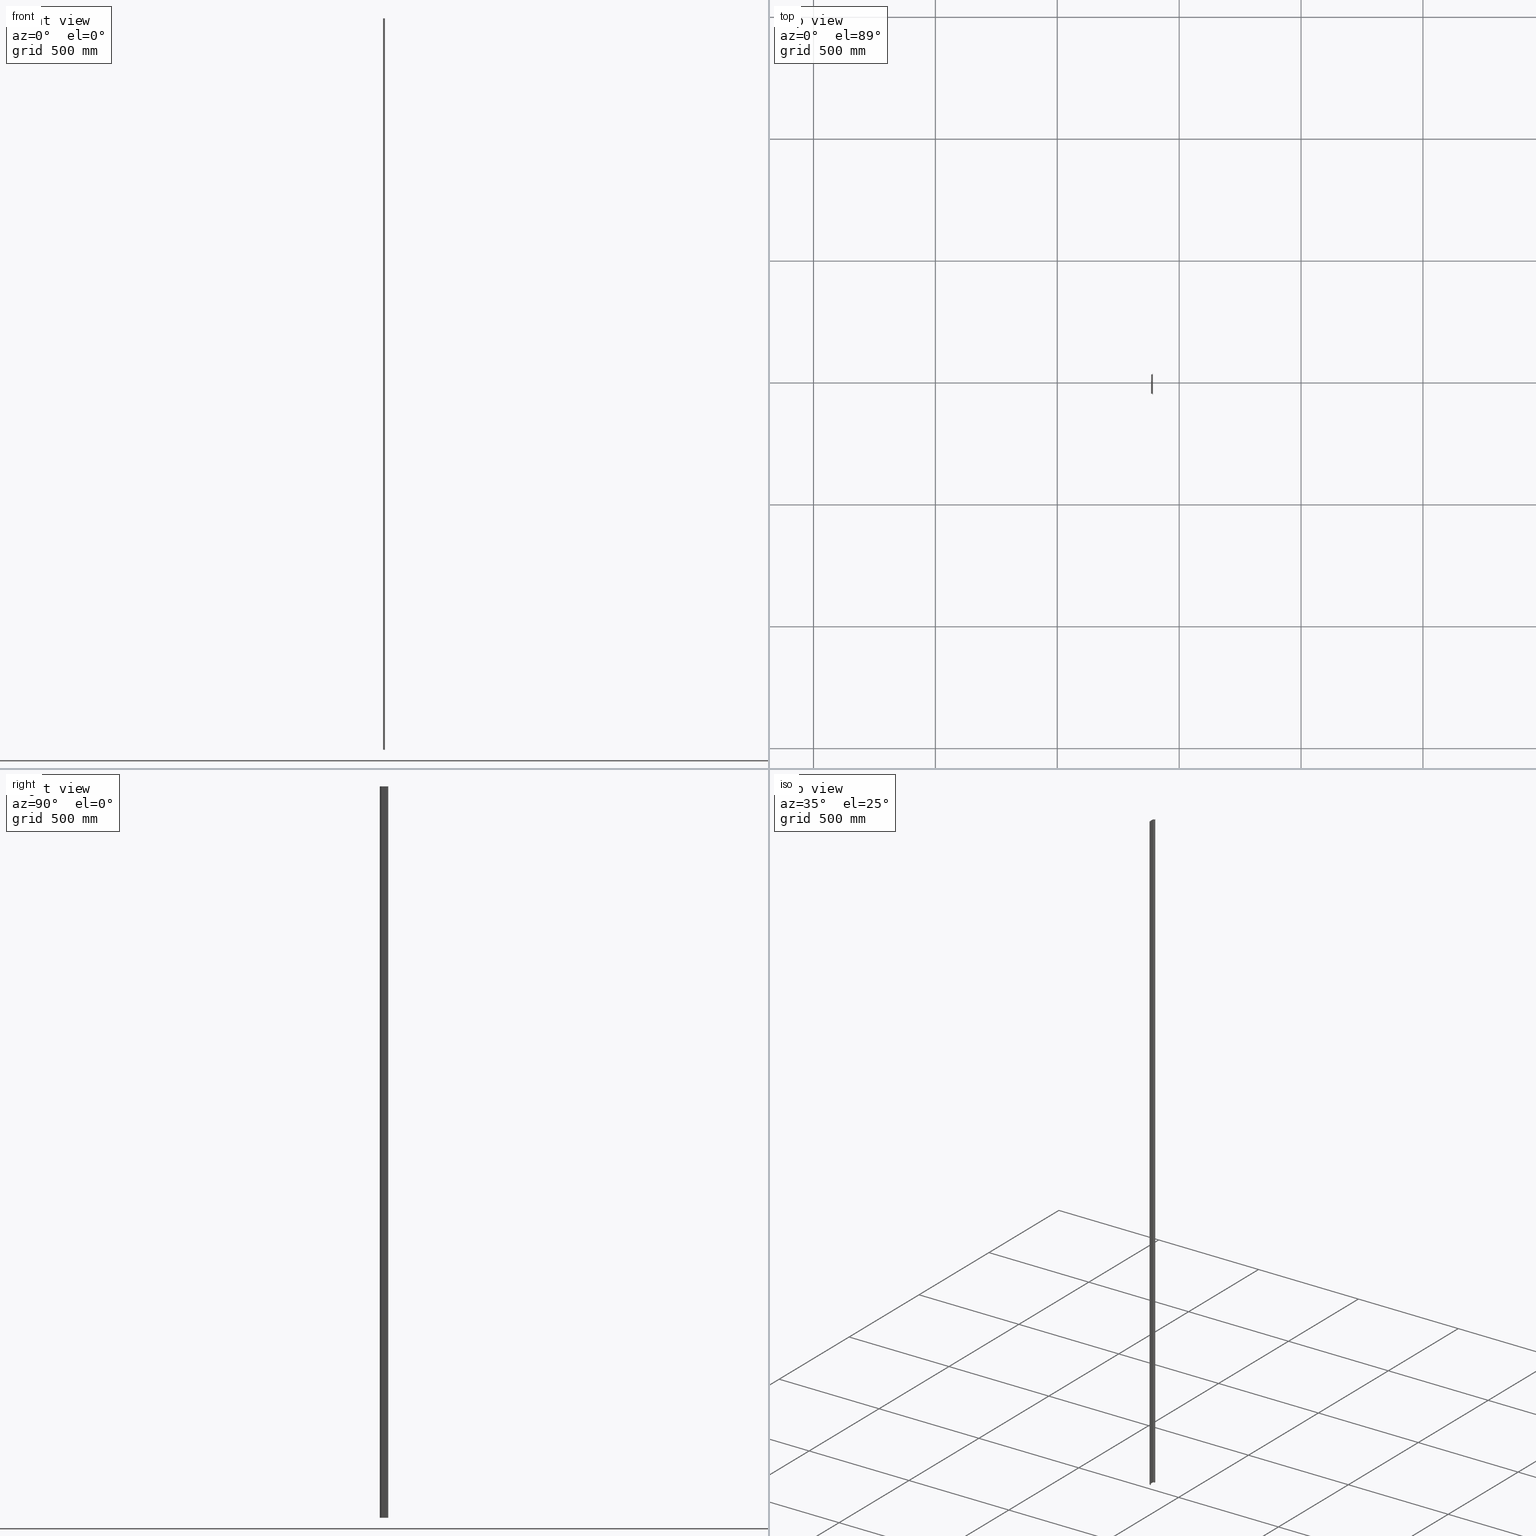
[diagram: canonical four-view strip — front | top / right | iso, engineering-drawing reading convention]
A machine part, canonical four-view strip (front | top / right | iso — engineering-drawing reading convention). The complete STEP part file that produces these views, byte-faithful:
ISO-10303-21;
HEADER;
FILE_DESCRIPTION (( 'STEP AP203' ),
    '1' );
FILE_NAME ('35x7,5 Galvaniz Kapl� D�z Montaj Raylar� - 3 m.STEP',
    '2019-01-04T05:48:22',
    ( '' ),
    ( '' ),
    'SwSTEP 2.0',
    'SolidWorks 2011',
    '' );
FILE_SCHEMA (( 'CONFIG_CONTROL_DESIGN' ));
ENDSEC;

DATA;
#1 = CARTESIAN_POINT ( 'NONE',  ( 1388.575919215658400, 455.5188036583252800, 3000.000000000000000 ) ) ;
#2 = DIRECTION ( 'NONE',  ( -1.000000000000000000, 2.467162276944699000E-014, 0.0000000000000000000 ) ) ;
#3 = LINE ( 'NONE', #4, #258 ) ;
#4 = CARTESIAN_POINT ( 'NONE',  ( 1392.325919215657900, 483.5188036583252800, 3000.000000000000000 ) ) ;
#5 = DIRECTION ( 'NONE',  ( 0.0000000000000000000, 0.0000000000000000000, -1.000000000000000000 ) ) ;
#6 = DIRECTION ( 'NONE',  ( -1.000000000000000000, 0.0000000000000000000, 0.0000000000000000000 ) ) ;
#7 = DIRECTION ( 'NONE',  ( 1.000000000000000000, 0.0000000000000000000, 0.0000000000000000000 ) ) ;
#8 = CARTESIAN_POINT ( 'NONE',  ( 1388.575919215657900, 451.6188036583252500, 0.0000000000000000000 ) ) ;
#9 = LINE ( 'NONE', #16, #270 ) ;
#10 = FACE_OUTER_BOUND ( 'NONE', #557, .T. ) ;
#11 = LINE ( 'NONE', #12, #261 ) ;
#12 = CARTESIAN_POINT ( 'NONE',  ( 1388.575919215657900, 486.6188036583252500, 0.0000000000000000000 ) ) ;
#13 = CARTESIAN_POINT ( 'NONE',  ( 1386.625919215657900, 457.3188036583253500, 0.0000000000000000000 ) ) ;
#14 = DIRECTION ( 'NONE',  ( -0.0000000000000000000, 0.0000000000000000000, 1.000000000000000000 ) ) ;
#15 = CARTESIAN_POINT ( 'NONE',  ( 1384.825919215657900, 441.1357542965276400, 0.0000000000000000000 ) ) ;
#16 = CARTESIAN_POINT ( 'NONE',  ( 1386.625919215657900, 456.5188036583253400, 3000.000000000000000 ) ) ;
#17 = DIRECTION ( 'NONE',  ( 0.0000000000000000000, 0.0000000000000000000, 1.000000000000000000 ) ) ;
#18 = DIRECTION ( 'NONE',  ( 1.000000000000000000, 0.0000000000000000000, 0.0000000000000000000 ) ) ;
#19 = DIRECTION ( 'NONE',  ( 1.000000000000000000, 0.0000000000000000000, 0.0000000000000000000 ) ) ;
#20 = DIRECTION ( 'NONE',  ( -1.000000000000000000, 0.0000000000000000000, 0.0000000000000000000 ) ) ;
#21 = DIRECTION ( 'NONE',  ( 0.0000000000000000000, -0.0000000000000000000, -1.000000000000000000 ) ) ;
#22 = DIRECTION ( 'NONE',  ( -0.0000000000000000000, -0.0000000000000000000, -1.000000000000000000 ) ) ;
#23 = DIRECTION ( 'NONE',  ( 0.0000000000000000000, -1.000000000000000000, 0.0000000000000000000 ) ) ;
#24 = LINE ( 'NONE', #38, #242 ) ;
#25 = DIRECTION ( 'NONE',  ( 0.0000000000000000000, -0.0000000000000000000, -1.000000000000000000 ) ) ;
#26 = DIRECTION ( 'NONE',  ( -0.0000000000000000000, -0.0000000000000000000, -1.000000000000000000 ) ) ;
#27 = LINE ( 'NONE', #45, #275 ) ;
#28 = LINE ( 'NONE', #15, #260 ) ;
#29 = LINE ( 'NONE', #39, #226 ) ;
#30 = LINE ( 'NONE', #48, #251 ) ;
#31 = CARTESIAN_POINT ( 'NONE',  ( 1392.325919215657900, 441.1357542965276400, 0.0000000000000000000 ) ) ;
#32 = DIRECTION ( 'NONE',  ( 0.0000000000000000000, -1.000000000000000000, 0.0000000000000000000 ) ) ;
#33 = DIRECTION ( 'NONE',  ( 0.0000000000000000000, 0.0000000000000000000, 1.000000000000000000 ) ) ;
#34 = LINE ( 'NONE', #60, #239 ) ;
#35 = LINE ( 'NONE', #31, #252 ) ;
#36 = LINE ( 'NONE', #40, #227 ) ;
#37 = DIRECTION ( 'NONE',  ( 1.000000000000000000, 0.0000000000000000000, 0.0000000000000000000 ) ) ;
#38 = CARTESIAN_POINT ( 'NONE',  ( 1391.325919215657900, 483.5188036583252300, 3000.000000000000000 ) ) ;
#39 = CARTESIAN_POINT ( 'NONE',  ( 1391.325919215657900, 441.1357542965276400, 0.0000000000000000000 ) ) ;
#40 = CARTESIAN_POINT ( 'NONE',  ( 1384.825919215657900, 441.1357542965276400, 3000.000000000000000 ) ) ;
#41 = CARTESIAN_POINT ( 'NONE',  ( 1390.525919215658000, 454.7188036583252100, 0.0000000000000000000 ) ) ;
#42 = DIRECTION ( 'NONE',  ( -0.0000000000000000000, 0.0000000000000000000, 1.000000000000000000 ) ) ;
#43 = DIRECTION ( 'NONE',  ( 0.0000000000000000000, -1.000000000000000000, 0.0000000000000000000 ) ) ;
#44 = CARTESIAN_POINT ( 'NONE',  ( 1386.625919215658100, 480.9188036583253200, 0.0000000000000000000 ) ) ;
#45 = CARTESIAN_POINT ( 'NONE',  ( 1391.325919215657900, 454.7188036583252100, 3000.000000000000000 ) ) ;
#46 = DIRECTION ( 'NONE',  ( 0.0000000000000000000, -1.000000000000000000, 0.0000000000000000000 ) ) ;
#47 = LINE ( 'NONE', #49, #235 ) ;
#48 = CARTESIAN_POINT ( 'NONE',  ( 1386.625919215657900, 481.7188036583252700, 0.0000000000000000000 ) ) ;
#49 = CARTESIAN_POINT ( 'NONE',  ( 1391.325919215657900, 441.1357542965276400, 0.0000000000000000000 ) ) ;
#50 = DIRECTION ( 'NONE',  ( 0.0000000000000000000, -1.000000000000000000, 0.0000000000000000000 ) ) ;
#51 = CARTESIAN_POINT ( 'NONE',  ( 1390.525919215657700, 483.5188036583252800, 0.0000000000000000000 ) ) ;
#52 = LINE ( 'NONE', #53, #255 ) ;
#53 = CARTESIAN_POINT ( 'NONE',  ( 1386.625919215658100, 482.7188036583253300, 3000.000000000000000 ) ) ;
#54 = DIRECTION ( 'NONE',  ( 1.000000000000000000, 0.0000000000000000000, 0.0000000000000000000 ) ) ;
#55 = CARTESIAN_POINT ( 'NONE',  ( 1390.525919215658000, 454.7188036583252100, 3000.000000000000000 ) ) ;
#56 = DIRECTION ( 'NONE',  ( 1.000000000000000000, 0.0000000000000000000, 0.0000000000000000000 ) ) ;
#57 = LINE ( 'NONE', #69, #253 ) ;
#58 = DIRECTION ( 'NONE',  ( 0.0000000000000000000, -0.0000000000000000000, -1.000000000000000000 ) ) ;
#59 = DIRECTION ( 'NONE',  ( -0.0000000000000000000, -0.0000000000000000000, -1.000000000000000000 ) ) ;
#60 = CARTESIAN_POINT ( 'NONE',  ( 1385.825919215657900, 457.3188036583253500, 3000.000000000000000 ) ) ;
#61 = DIRECTION ( 'NONE',  ( 0.0000000000000000000, -0.0000000000000000000, -1.000000000000000000 ) ) ;
#62 = LINE ( 'NONE', #66, #249 ) ;
#63 = DIRECTION ( 'NONE',  ( -0.0000000000000000000, 0.0000000000000000000, 1.000000000000000000 ) ) ;
#64 = DIRECTION ( 'NONE',  ( 1.000000000000000000, 0.0000000000000000000, 0.0000000000000000000 ) ) ;
#65 = CARTESIAN_POINT ( 'NONE',  ( 1386.625919215658100, 457.3188036583254100, 3000.000000000000000 ) ) ;
#66 = CARTESIAN_POINT ( 'NONE',  ( 1391.325919215657900, 451.6188036583252500, 3000.000000000000000 ) ) ;
#67 = CARTESIAN_POINT ( 'NONE',  ( 1386.625919215658100, 457.3188036583254100, 0.0000000000000000000 ) ) ;
#68 = LINE ( 'NONE', #71, #230 ) ;
#69 = CARTESIAN_POINT ( 'NONE',  ( 1384.825919215657900, 480.9188036583253200, 3000.000000000000000 ) ) ;
#70 = DIRECTION ( 'NONE',  ( -0.0000000000000000000, -0.0000000000000000000, -1.000000000000000000 ) ) ;
#71 = CARTESIAN_POINT ( 'NONE',  ( 1391.325919215657900, 486.6188036583252500, 3000.000000000000000 ) ) ;
#72 = DIRECTION ( 'NONE',  ( -0.0000000000000000000, -0.0000000000000000000, 1.000000000000000000 ) ) ;
#73 = DIRECTION ( 'NONE',  ( 0.0000000000000000000, 0.0000000000000000000, -1.000000000000000000 ) ) ;
#74 = LINE ( 'NONE', #75, #234 ) ;
#75 = CARTESIAN_POINT ( 'NONE',  ( 1388.575919215657900, 481.7188036583252700, 3000.000000000000000 ) ) ;
#76 = LINE ( 'NONE', #77, #245 ) ;
#77 = CARTESIAN_POINT ( 'NONE',  ( 1385.825919215657900, 441.1357542965276400, 3000.000000000000000 ) ) ;
#78 = CARTESIAN_POINT ( 'NONE',  ( 1390.525919215658000, 482.7188036583252100, 3000.000000000000000 ) ) ;
#79 = CARTESIAN_POINT ( 'NONE',  ( 1386.625919215658100, 480.9188036583253200, 3000.000000000000000 ) ) ;
#80 = LINE ( 'NONE', #114, #265 ) ;
#81 = CARTESIAN_POINT ( 'NONE',  ( 1386.625919215658100, 455.5188036583253400, 3000.000000000000000 ) ) ;
#82 = CARTESIAN_POINT ( 'NONE',  ( 1390.525919215658000, 483.5188036583252300, 3000.000000000000000 ) ) ;
#83 = DIRECTION ( 'NONE',  ( 0.0000000000000000000, -1.000000000000000000, 0.0000000000000000000 ) ) ;
#84 = DIRECTION ( 'NONE',  ( 0.0000000000000000000, -0.0000000000000000000, -1.000000000000000000 ) ) ;
#85 = DIRECTION ( 'NONE',  ( 0.0000000000000000000, -1.000000000000000000, 0.0000000000000000000 ) ) ;
#86 = CARTESIAN_POINT ( 'NONE',  ( 1386.625919215657900, 457.3188036583253500, 3000.000000000000000 ) ) ;
#87 = DIRECTION ( 'NONE',  ( 0.0000000000000000000, -0.0000000000000000000, -1.000000000000000000 ) ) ;
#88 = DIRECTION ( 'NONE',  ( 1.000000000000000000, 0.0000000000000000000, 0.0000000000000000000 ) ) ;
#89 = DIRECTION ( 'NONE',  ( -1.000000000000000000, 2.467162276944699000E-014, 0.0000000000000000000 ) ) ;
#90 = LINE ( 'NONE', #107, #540 ) ;
#91 = CARTESIAN_POINT ( 'NONE',  ( 1385.825919215657900, 441.1357542965276400, 0.0000000000000000000 ) ) ;
#92 = DIRECTION ( 'NONE',  ( 0.0000000000000000000, -1.000000000000000000, 0.0000000000000000000 ) ) ;
#93 = DIRECTION ( 'NONE',  ( 1.000000000000000000, 0.0000000000000000000, 0.0000000000000000000 ) ) ;
#94 = DIRECTION ( 'NONE',  ( -0.0000000000000000000, 0.0000000000000000000, 1.000000000000000000 ) ) ;
#95 = DIRECTION ( 'NONE',  ( 1.000000000000000000, 0.0000000000000000000, 0.0000000000000000000 ) ) ;
#96 = CARTESIAN_POINT ( 'NONE',  ( 1388.575919215658400, 455.5188036583252800, 0.0000000000000000000 ) ) ;
#97 = DIRECTION ( 'NONE',  ( 1.000000000000000000, 0.0000000000000000000, 0.0000000000000000000 ) ) ;
#98 = CARTESIAN_POINT ( 'NONE',  ( 1390.525919215657700, 454.7188036583252700, 0.0000000000000000000 ) ) ;
#99 = LINE ( 'NONE', #102, #554 ) ;
#100 = DIRECTION ( 'NONE',  ( 1.000000000000000000, 0.0000000000000000000, 0.0000000000000000000 ) ) ;
#101 = LINE ( 'NONE', #91, #274 ) ;
#102 = CARTESIAN_POINT ( 'NONE',  ( 1392.325919215657900, 441.1357542965276400, 0.0000000000000000000 ) ) ;
#103 = DIRECTION ( 'NONE',  ( 0.0000000000000000000, -0.0000000000000000000, -1.000000000000000000 ) ) ;
#104 = DIRECTION ( 'NONE',  ( -1.000000000000000000, 0.0000000000000000000, 0.0000000000000000000 ) ) ;
#105 = DIRECTION ( 'NONE',  ( -0.0000000000000000000, -0.0000000000000000000, 1.000000000000000000 ) ) ;
#106 = DIRECTION ( 'NONE',  ( 0.0000000000000000000, -0.0000000000000000000, -1.000000000000000000 ) ) ;
#107 = CARTESIAN_POINT ( 'NONE',  ( 1388.575919215657900, 486.6188036583252500, 3000.000000000000000 ) ) ;
#108 = CARTESIAN_POINT ( 'NONE',  ( 1390.525919215657700, 456.5188036583253400, 0.0000000000000000000 ) ) ;
#109 = DIRECTION ( 'NONE',  ( -0.0000000000000000000, -0.0000000000000000000, -1.000000000000000000 ) ) ;
#110 = CARTESIAN_POINT ( 'NONE',  ( 1386.625919215657900, 480.9188036583252600, 3000.000000000000000 ) ) ;
#111 = DIRECTION ( 'NONE',  ( 0.0000000000000000000, 0.0000000000000000000, -1.000000000000000000 ) ) ;
#112 = LINE ( 'NONE', #108, #248 ) ;
#113 = LINE ( 'NONE', #96, #250 ) ;
#114 = CARTESIAN_POINT ( 'NONE',  ( 1390.525919215657700, 481.7188036583252700, 3000.000000000000000 ) ) ;
#115 = CARTESIAN_POINT ( 'NONE',  ( 1386.625919215657900, 480.9188036583252600, 3000.000000000000000 ) ) ;
#116 = DIRECTION ( 'NONE',  ( 0.0000000000000000000, 0.0000000000000000000, -1.000000000000000000 ) ) ;
#117 = CARTESIAN_POINT ( 'NONE',  ( 1386.625919215658100, 482.7188036583253300, 0.0000000000000000000 ) ) ;
#118 = CARTESIAN_POINT ( 'NONE',  ( 1391.325919215657900, 483.5188036583252300, 3000.000000000000000 ) ) ;
#119 = CARTESIAN_POINT ( 'NONE',  ( 1386.625919215658100, 455.5188036583253400, 0.0000000000000000000 ) ) ;
#120 = CARTESIAN_POINT ( 'NONE',  ( 1384.825919215657900, 480.9188036583253200, 3000.000000000000000 ) ) ;
#121 = DIRECTION ( 'NONE',  ( -1.000000000000000000, 0.0000000000000000000, 0.0000000000000000000 ) ) ;
#122 = CARTESIAN_POINT ( 'NONE',  ( 1392.325919215657900, 486.6188036583252500, 3000.000000000000000 ) ) ;
#123 = LINE ( 'NONE', #133, #543 ) ;
#124 = CARTESIAN_POINT ( 'NONE',  ( 1385.825919215657900, 480.9188036583252600, 0.0000000000000000000 ) ) ;
#125 = CARTESIAN_POINT ( 'NONE',  ( 1386.625919215658100, 482.7188036583253300, 3000.000000000000000 ) ) ;
#126 = CARTESIAN_POINT ( 'NONE',  ( 1390.525919215657700, 481.7188036583252700, 0.0000000000000000000 ) ) ;
#127 = CARTESIAN_POINT ( 'NONE',  ( 1392.325919215657900, 454.7188036583252700, 3000.000000000000000 ) ) ;
#128 = CARTESIAN_POINT ( 'NONE',  ( 1384.825919215657900, 480.9188036583253200, 0.0000000000000000000 ) ) ;
#129 = CARTESIAN_POINT ( 'NONE',  ( 1391.325919215657900, 454.7188036583252100, 0.0000000000000000000 ) ) ;
#130 = CARTESIAN_POINT ( 'NONE',  ( 1392.325919215657900, 451.6188036583252500, 0.0000000000000000000 ) ) ;
#131 = CARTESIAN_POINT ( 'NONE',  ( 1392.325919215657900, 451.6188036583252500, 3000.000000000000000 ) ) ;
#132 = CARTESIAN_POINT ( 'NONE',  ( 1391.325919215657900, 486.6188036583252500, 3000.000000000000000 ) ) ;
#133 = CARTESIAN_POINT ( 'NONE',  ( 1392.325919215657900, 454.7188036583252700, 3000.000000000000000 ) ) ;
#134 = CARTESIAN_POINT ( 'NONE',  ( 1390.525919215658000, 455.5188036583252800, 0.0000000000000000000 ) ) ;
#135 = CARTESIAN_POINT ( 'NONE',  ( 1390.525919215657700, 456.5188036583253400, 3000.000000000000000 ) ) ;
#136 = CARTESIAN_POINT ( 'NONE',  ( 1392.325919215657900, 483.5188036583252800, 3000.000000000000000 ) ) ;
#137 = CARTESIAN_POINT ( 'NONE',  ( 1386.625919215657900, 456.5188036583253400, 0.0000000000000000000 ) ) ;
#138 = CARTESIAN_POINT ( 'NONE',  ( 1390.525919215657700, 481.7188036583252700, 3000.000000000000000 ) ) ;
#139 = CARTESIAN_POINT ( 'NONE',  ( 1384.825919215657900, 457.3188036583254100, 3000.000000000000000 ) ) ;
#140 = FACE_OUTER_BOUND ( 'NONE', #693, .T. ) ;
#141 = CYLINDRICAL_SURFACE ( 'NONE', #546, 0.7999999999999118900 ) ;
#142 = CARTESIAN_POINT ( 'NONE',  ( 1384.825919215657900, 457.3188036583254100, 0.0000000000000000000 ) ) ;
#143 = CARTESIAN_POINT ( 'NONE',  ( 1385.825919215657900, 480.9188036583252600, 3000.000000000000000 ) ) ;
#144 = DIRECTION ( 'NONE',  ( -0.0000000000000000000, -0.0000000000000000000, 1.000000000000000000 ) ) ;
#145 = CARTESIAN_POINT ( 'NONE',  ( 1392.325919215657900, 454.7188036583252700, 0.0000000000000000000 ) ) ;
#146 = CARTESIAN_POINT ( 'NONE',  ( 1391.325919215657900, 451.6188036583252500, 3000.000000000000000 ) ) ;
#147 = CARTESIAN_POINT ( 'NONE',  ( 1391.325919215657900, 454.7188036583252100, 3000.000000000000000 ) ) ;
#148 = CARTESIAN_POINT ( 'NONE',  ( 1392.325919215657900, 483.5188036583252800, 0.0000000000000000000 ) ) ;
#149 = CARTESIAN_POINT ( 'NONE',  ( 1390.525919215658000, 482.7188036583252100, 0.0000000000000000000 ) ) ;
#150 = CARTESIAN_POINT ( 'NONE',  ( 1388.575919215659000, 482.7188036583252700, 3000.000000000000000 ) ) ;
#151 = CARTESIAN_POINT ( 'NONE',  ( 1384.825919215657900, 441.1357542965276400, 3000.000000000000000 ) ) ;
#152 = DIRECTION ( 'NONE',  ( 1.000000000000000000, 0.0000000000000000000, -0.0000000000000000000 ) ) ;
#153 = CARTESIAN_POINT ( 'NONE',  ( 1391.325919215657900, 451.6188036583252500, 0.0000000000000000000 ) ) ;
#154 = CARTESIAN_POINT ( 'NONE',  ( 1386.625919215657900, 456.5188036583253400, 3000.000000000000000 ) ) ;
#155 = CARTESIAN_POINT ( 'NONE',  ( 1392.325919215657900, 486.6188036583252500, 0.0000000000000000000 ) ) ;
#156 = DIRECTION ( 'NONE',  ( -0.0000000000000000000, 0.0000000000000000000, -1.000000000000000000 ) ) ;
#157 = CARTESIAN_POINT ( 'NONE',  ( 1385.825919215657900, 457.3188036583253500, 3000.000000000000000 ) ) ;
#158 = CARTESIAN_POINT ( 'NONE',  ( 1391.325919215657900, 486.6188036583252500, 0.0000000000000000000 ) ) ;
#159 = CARTESIAN_POINT ( 'NONE',  ( 1386.625919215657900, 481.7188036583252700, 0.0000000000000000000 ) ) ;
#160 = DIRECTION ( 'NONE',  ( -1.000000000000000000, 0.0000000000000000000, 0.0000000000000000000 ) ) ;
#161 = CARTESIAN_POINT ( 'NONE',  ( 1385.825919215657900, 457.3188036583253500, 0.0000000000000000000 ) ) ;
#162 = CARTESIAN_POINT ( 'NONE',  ( 1390.525919215657700, 456.5188036583253400, 0.0000000000000000000 ) ) ;
#163 = CARTESIAN_POINT ( 'NONE',  ( 1390.525919215658000, 455.5188036583252800, 3000.000000000000000 ) ) ;
#164 = PLANE ( 'NONE',  #545 ) ;
#165 = CARTESIAN_POINT ( 'NONE',  ( 1386.625919215657900, 481.7188036583252700, 3000.000000000000000 ) ) ;
#166 = CARTESIAN_POINT ( 'NONE',  ( 1391.325919215657900, 483.5188036583252300, 0.0000000000000000000 ) ) ;
#167 = FACE_OUTER_BOUND ( 'NONE', #178, .T. ) ;
#168 = LINE ( 'NONE', #150, #547 ) ;
#169 = CARTESIAN_POINT ( 'NONE',  ( 1388.575919215657900, 451.6188036583252500, 3000.000000000000000 ) ) ;
#170 = CARTESIAN_POINT ( 'NONE',  ( 1386.625919215657900, 480.9188036583252600, 0.0000000000000000000 ) ) ;
#171 = DIRECTION ( 'NONE',  ( 0.0000000000000000000, 0.0000000000000000000, 1.000000000000000000 ) ) ;
#172 = CARTESIAN_POINT ( 'NONE',  ( 1392.325919215657900, 441.1357542965276400, 3000.000000000000000 ) ) ;
#173 = LINE ( 'NONE', #177, #443 ) ;
#174 = DIRECTION ( 'NONE',  ( -0.0000000000000000000, 0.0000000000000000000, 1.000000000000000000 ) ) ;
#175 = CARTESIAN_POINT ( 'NONE',  ( 1390.525919215657700, 483.5188036583252800, 3000.000000000000000 ) ) ;
#176 = LINE ( 'NONE', #185, #452 ) ;
#177 = CARTESIAN_POINT ( 'NONE',  ( 1390.525919215658000, 455.5188036583252800, 3000.000000000000000 ) ) ;
#178 = EDGE_LOOP ( 'NONE', ( #562, #568, #611, #593 ) ) ;
#179 = LINE ( 'NONE', #181, #268 ) ;
#180 = DIRECTION ( 'NONE',  ( -1.000000000000000000, 0.0000000000000000000, 0.0000000000000000000 ) ) ;
#181 = CARTESIAN_POINT ( 'NONE',  ( 1385.825919215657900, 480.9188036583252600, 3000.000000000000000 ) ) ;
#182 = DIRECTION ( 'NONE',  ( 1.000000000000000000, 0.0000000000000000000, 0.0000000000000000000 ) ) ;
#183 = DIRECTION ( 'NONE',  ( -0.0000000000000000000, 0.0000000000000000000, 1.000000000000000000 ) ) ;
#184 = CARTESIAN_POINT ( 'NONE',  ( 1390.525919215658000, 483.5188036583252300, 0.0000000000000000000 ) ) ;
#185 = CARTESIAN_POINT ( 'NONE',  ( 1392.325919215657900, 451.6188036583252500, 3000.000000000000000 ) ) ;
#186 = DIRECTION ( 'NONE',  ( -0.0000000000000000000, -0.0000000000000000000, -1.000000000000000000 ) ) ;
#187 = CARTESIAN_POINT ( 'NONE',  ( 1390.525919215657700, 454.7188036583252700, 3000.000000000000000 ) ) ;
#188 = LINE ( 'NONE', #198, #444 ) ;
#189 = DIRECTION ( 'NONE',  ( 1.000000000000000000, 0.0000000000000000000, 0.0000000000000000000 ) ) ;
#190 = DIRECTION ( 'NONE',  ( -1.000000000000000000, 2.467162276944699000E-014, 0.0000000000000000000 ) ) ;
#191 = LINE ( 'NONE', #194, #446 ) ;
#192 = EDGE_LOOP ( 'NONE', ( #584, #574, #603, #596 ) ) ;
#193 = DIRECTION ( 'NONE',  ( 0.0000000000000000000, -1.000000000000000000, 0.0000000000000000000 ) ) ;
#194 = CARTESIAN_POINT ( 'NONE',  ( 1391.325919215657900, 441.1357542965276400, 3000.000000000000000 ) ) ;
#195 = LINE ( 'NONE', #197, #455 ) ;
#196 = DIRECTION ( 'NONE',  ( 1.000000000000000000, 0.0000000000000000000, 0.0000000000000000000 ) ) ;
#197 = CARTESIAN_POINT ( 'NONE',  ( 1392.325919215657900, 486.6188036583252500, 3000.000000000000000 ) ) ;
#198 = CARTESIAN_POINT ( 'NONE',  ( 1388.575919215659000, 482.7188036583252700, 0.0000000000000000000 ) ) ;
#199 = LINE ( 'NONE', #169, #259 ) ;
#200 = LINE ( 'NONE', #202, #451 ) ;
#201 = DIRECTION ( 'NONE',  ( -0.0000000000000000000, 0.0000000000000000000, 1.000000000000000000 ) ) ;
#202 = CARTESIAN_POINT ( 'NONE',  ( 1386.625919215658100, 455.5188036583253400, 0.0000000000000000000 ) ) ;
#203 = DIRECTION ( 'NONE',  ( 0.0000000000000000000, -1.000000000000000000, 0.0000000000000000000 ) ) ;
#204 = DIRECTION ( 'NONE',  ( 1.000000000000000000, 0.0000000000000000000, 0.0000000000000000000 ) ) ;
#205 = LINE ( 'NONE', #207, #457 ) ;
#206 = LINE ( 'NONE', #172, #445 ) ;
#207 = CARTESIAN_POINT ( 'NONE',  ( 1390.525919215658000, 482.7188036583252100, 0.0000000000000000000 ) ) ;
#208 = DIRECTION ( 'NONE',  ( -0.0000000000000000000, 0.0000000000000000000, 1.000000000000000000 ) ) ;
#209 = DIRECTION ( 'NONE',  ( -0.0000000000000000000, -0.0000000000000000000, -1.000000000000000000 ) ) ;
#210 = DIRECTION ( 'NONE',  ( -0.0000000000000000000, -0.0000000000000000000, -1.000000000000000000 ) ) ;
#211 = LINE ( 'NONE', #1, #271 ) ;
#212 = DIRECTION ( 'NONE',  ( 0.0000000000000000000, 0.0000000000000000000, -1.000000000000000000 ) ) ;
#213 = LINE ( 'NONE', #8, #272 ) ;
#214 = DIRECTION ( 'NONE',  ( 0.0000000000000000000, 0.0000000000000000000, 1.000000000000000000 ) ) ;
#215 = PRODUCT_DEFINITION_FORMATION_WITH_SPECIFIED_SOURCE ( '     Herhangi', '', #523, .NOT_KNOWN. ) ;
#216 = CARTESIAN_POINT ( 'NONE',  ( 1390.525919215658000, 483.5188036583252300, 3000.000000000000000 ) ) ;
#217 = CYLINDRICAL_SURFACE ( 'NONE', #536, 0.7999999999999118900 ) ;
#218 = CARTESIAN_POINT ( 'NONE',  ( 1388.575919215658400, 455.5188036583252800, 3000.000000000000000 ) ) ;
#219 = VECTOR ( 'NONE', #351, 1000.000000000000000 ) ;
#220 = AXIS2_PLACEMENT_3D ( 'NONE', #345, #362, #367 ) ;
#221 = AXIS2_PLACEMENT_3D ( 'NONE', #325, #276, #277 ) ;
#222 = VECTOR ( 'NONE', #302, 1000.000000000000000 ) ;
#223 = FACE_OUTER_BOUND ( 'NONE', #733, .T. ) ;
#224 = FACE_OUTER_BOUND ( 'NONE', #678, .T. ) ;
#225 = PLANE ( 'NONE',  #535 ) ;
#226 = VECTOR ( 'NONE', #46, 1000.000000000000000 ) ;
#227 = VECTOR ( 'NONE', #50, 1000.000000000000000 ) ;
#228 = CIRCLE ( 'NONE', #229, 1.800000000000023800 ) ;
#229 = AXIS2_PLACEMENT_3D ( 'NONE', #65, #63, #54 ) ;
#230 = VECTOR ( 'NONE', #70, 1000.000000000000000 ) ;
#231 = CIRCLE ( 'NONE', #247, 0.7999999999999118900 ) ;
#232 = CIRCLE ( 'NONE', #233, 1.800000000000023800 ) ;
#233 = AXIS2_PLACEMENT_3D ( 'NONE', #79, #94, #100 ) ;
#234 = VECTOR ( 'NONE', #104, 1000.000000000000000 ) ;
#235 = VECTOR ( 'NONE', #23, 1000.000000000000000 ) ;
#236 = CIRCLE ( 'NONE', #257, 1.800000000000023800 ) ;
#237 = CIRCLE ( 'NONE', #254, 1.800000000000023800 ) ;
#238 = AXIS2_PLACEMENT_3D ( 'NONE', #357, #348, #361 ) ;
#239 = VECTOR ( 'NONE', #109, 1000.000000000000000 ) ;
#240 = AXIS2_PLACEMENT_3D ( 'NONE', #55, #61, #56 ) ;
#241 = CIRCLE ( 'NONE', #243, 0.7999999999999118900 ) ;
#242 = VECTOR ( 'NONE', #33, 1000.000000000000000 ) ;
#243 = AXIS2_PLACEMENT_3D ( 'NONE', #110, #103, #93 ) ;
#244 = CIRCLE ( 'NONE', #256, 1.800000000000023800 ) ;
#245 = VECTOR ( 'NONE', #83, 1000.000000000000000 ) ;
#246 = CIRCLE ( 'NONE', #240, 0.7999999999999118900 ) ;
#247 = AXIS2_PLACEMENT_3D ( 'NONE', #86, #87, #95 ) ;
#248 = VECTOR ( 'NONE', #111, 1000.000000000000000 ) ;
#249 = VECTOR ( 'NONE', #59, 1000.000000000000000 ) ;
#250 = VECTOR ( 'NONE', #89, 1000.000000000000000 ) ;
#251 = VECTOR ( 'NONE', #26, 1000.000000000000000 ) ;
#252 = VECTOR ( 'NONE', #32, 1000.000000000000000 ) ;
#253 = VECTOR ( 'NONE', #73, 1000.000000000000000 ) ;
#254 = AXIS2_PLACEMENT_3D ( 'NONE', #51, #21, #37 ) ;
#255 = VECTOR ( 'NONE', #72, 1000.000000000000000 ) ;
#256 = AXIS2_PLACEMENT_3D ( 'NONE', #67, #58, #64 ) ;
#257 = AXIS2_PLACEMENT_3D ( 'NONE', #98, #106, #88 ) ;
#258 = VECTOR ( 'NONE', #5, 1000.000000000000000 ) ;
#259 = VECTOR ( 'NONE', #180, 1000.000000000000000 ) ;
#260 = VECTOR ( 'NONE', #43, 1000.000000000000000 ) ;
#261 = VECTOR ( 'NONE', #20, 1000.000000000000000 ) ;
#262 = CIRCLE ( 'NONE', #263, 0.7999999999999118900 ) ;
#263 = AXIS2_PLACEMENT_3D ( 'NONE', #41, #42, #19 ) ;
#264 = CIRCLE ( 'NONE', #267, 1.800000000000023800 ) ;
#265 = VECTOR ( 'NONE', #105, 1000.000000000000000 ) ;
#266 = AXIS2_PLACEMENT_3D ( 'NONE', #170, #174, #182 ) ;
#267 = AXIS2_PLACEMENT_3D ( 'NONE', #44, #25, #18 ) ;
#268 = VECTOR ( 'NONE', #214, 1000.000000000000000 ) ;
#269 = CIRCLE ( 'NONE', #273, 0.7999999999999118900 ) ;
#270 = VECTOR ( 'NONE', #17, 1000.000000000000000 ) ;
#271 = VECTOR ( 'NONE', #2, 1000.000000000000000 ) ;
#272 = VECTOR ( 'NONE', #6, 1000.000000000000000 ) ;
#273 = AXIS2_PLACEMENT_3D ( 'NONE', #13, #14, #7 ) ;
#274 = VECTOR ( 'NONE', #92, 1000.000000000000000 ) ;
#275 = VECTOR ( 'NONE', #22, 1000.000000000000000 ) ;
#276 = DIRECTION ( 'NONE',  ( 0.0000000000000000000, 0.0000000000000000000, 1.000000000000000000 ) ) ;
#277 = DIRECTION ( 'NONE',  ( 1.000000000000000000, 0.0000000000000000000, 0.0000000000000000000 ) ) ;
#278 = DIRECTION ( 'NONE',  ( -1.000000000000000000, 0.0000000000000000000, 0.0000000000000000000 ) ) ;
#279 = PLANE ( 'NONE',  #555 ) ;
#280 = DIRECTION ( 'NONE',  ( 0.0000000000000000000, -1.000000000000000000, 0.0000000000000000000 ) ) ;
#281 = FACE_OUTER_BOUND ( 'NONE', #681, .T. ) ;
#282 = FACE_OUTER_BOUND ( 'NONE', #680, .T. ) ;
#283 = PLANE ( 'NONE',  #530 ) ;
#284 = DIRECTION ( 'NONE',  ( 0.0000000000000000000, -0.0000000000000000000, -1.000000000000000000 ) ) ;
#285 = CARTESIAN_POINT ( 'NONE',  ( 1391.325919215657900, 441.1357542965276400, 3000.000000000000000 ) ) ;
#286 = DIRECTION ( 'NONE',  ( 1.000000000000000000, -2.467162276944699000E-014, 0.0000000000000000000 ) ) ;
#287 = DIRECTION ( 'NONE',  ( 1.000000000000000000, 0.0000000000000000000, 0.0000000000000000000 ) ) ;
#288 = DIRECTION ( 'NONE',  ( 0.0000000000000000000, -1.000000000000000000, 0.0000000000000000000 ) ) ;
#289 = CARTESIAN_POINT ( 'NONE',  ( 1388.575919215659000, 482.7188036583252700, 3000.000000000000000 ) ) ;
#290 = LINE ( 'NONE', #329, #219 ) ;
#291 = FACE_OUTER_BOUND ( 'NONE', #704, .T. ) ;
#292 = DIRECTION ( 'NONE',  ( -1.000000000000000000, 0.0000000000000000000, 0.0000000000000000000 ) ) ;
#293 = CARTESIAN_POINT ( 'NONE',  ( 1388.575919215657900, 481.7188036583252700, 0.0000000000000000000 ) ) ;
#294 = CARTESIAN_POINT ( 'NONE',  ( 1385.825919215657900, 441.1357542965276400, 3000.000000000000000 ) ) ;
#295 = CARTESIAN_POINT ( 'NONE',  ( 1390.525919215657700, 454.7188036583252700, 3000.000000000000000 ) ) ;
#296 = CARTESIAN_POINT ( 'NONE',  ( 1388.575919215657900, 456.5188036583253400, 0.0000000000000000000 ) ) ;
#297 = PLANE ( 'NONE',  #528 ) ;
#298 = FACE_OUTER_BOUND ( 'NONE', #736, .T. ) ;
#299 = FACE_OUTER_BOUND ( 'NONE', #556, .T. ) ;
#300 = LINE ( 'NONE', #293, #222 ) ;
#301 = DIRECTION ( 'NONE',  ( 1.000000000000000000, 0.0000000000000000000, 0.0000000000000000000 ) ) ;
#302 = DIRECTION ( 'NONE',  ( -1.000000000000000000, 0.0000000000000000000, 0.0000000000000000000 ) ) ;
#303 = DIRECTION ( 'NONE',  ( -0.0000000000000000000, 0.0000000000000000000, -1.000000000000000000 ) ) ;
#304 = DIRECTION ( 'NONE',  ( 0.0000000000000000000, 0.0000000000000000000, 1.000000000000000000 ) ) ;
#305 = CYLINDRICAL_SURFACE ( 'NONE', #221, 0.7999999999999118900 ) ;
#306 = CARTESIAN_POINT ( 'NONE',  ( 1388.575919215657900, 456.5188036583253400, 3000.000000000000000 ) ) ;
#307 = DIRECTION ( 'NONE',  ( 0.0000000000000000000, -0.0000000000000000000, -1.000000000000000000 ) ) ;
#308 = LINE ( 'NONE', #285, #533 ) ;
#309 = CYLINDRICAL_SURFACE ( 'NONE', #531, 1.800000000000023800 ) ;
#310 = DIRECTION ( 'NONE',  ( 1.000000000000000000, 0.0000000000000000000, -0.0000000000000000000 ) ) ;
#311 = PLANE ( 'NONE',  #529 ) ;
#312 = CARTESIAN_POINT ( 'NONE',  ( 1388.575919215657900, 481.7188036583252700, 3000.000000000000000 ) ) ;
#313 = DIRECTION ( 'NONE',  ( 0.0000000000000000000, -1.000000000000000000, 0.0000000000000000000 ) ) ;
#314 = LINE ( 'NONE', #296, #532 ) ;
#315 = DIRECTION ( 'NONE',  ( 1.000000000000000000, 0.0000000000000000000, 0.0000000000000000000 ) ) ;
#316 = CARTESIAN_POINT ( 'NONE',  ( 1388.575919215657900, 441.1357542965276400, 3000.000000000000000 ) ) ;
#317 = FACE_OUTER_BOUND ( 'NONE', #735, .T. ) ;
#318 = DIRECTION ( 'NONE',  ( -0.0000000000000000000, 0.0000000000000000000, 1.000000000000000000 ) ) ;
#319 = PLANE ( 'NONE',  #527 ) ;
#320 = LINE ( 'NONE', #321, #525 ) ;
#321 = CARTESIAN_POINT ( 'NONE',  ( 1388.575919215657900, 456.5188036583253400, 3000.000000000000000 ) ) ;
#322 = DIRECTION ( 'NONE',  ( -2.467162276944699000E-014, -1.000000000000000000, 0.0000000000000000000 ) ) ;
#323 = FACE_OUTER_BOUND ( 'NONE', #558, .T. ) ;
#324 = FACE_OUTER_BOUND ( 'NONE', #674, .T. ) ;
#325 = CARTESIAN_POINT ( 'NONE',  ( 1386.625919215657900, 457.3188036583253500, 3000.000000000000000 ) ) ;
#326 = PERSON_AND_ORGANIZATION ( #738, #458 ) ;
#327 = CARTESIAN_POINT ( 'NONE',  ( 1391.325919215657900, 441.1357542965276400, 3000.000000000000000 ) ) ;
#328 = FACE_OUTER_BOUND ( 'NONE', #705, .T. ) ;
#329 = CARTESIAN_POINT ( 'NONE',  ( 1392.325919215657900, 441.1357542965276400, 3000.000000000000000 ) ) ;
#330 = PERSON_AND_ORGANIZATION_ROLE ( 'creator' ) ;
#331 = COORDINATED_UNIVERSAL_TIME_OFFSET ( 3, 0, .AHEAD. ) ;
#332 = CALENDAR_DATE ( 2019, 4, 1 ) ;
#333 = DATE_TIME_ROLE ( 'creation_date' ) ;
#334 = DIRECTION ( 'NONE',  ( -0.0000000000000000000, 0.0000000000000000000, -1.000000000000000000 ) ) ;
#335 = PERSON_AND_ORGANIZATION ( #738, #458 ) ;
#336 = DIRECTION ( 'NONE',  ( 0.0000000000000000000, -1.000000000000000000, 0.0000000000000000000 ) ) ;
#337 = PLANE ( 'NONE',  #541 ) ;
#338 = PERSON_AND_ORGANIZATION ( #738, #458 ) ;
#339 = DATE_AND_TIME ( #332, #550 ) ;
#340 = APPROVAL_STATUS ( 'not_yet_approved' ) ;
#341 = APPLICATION_PROTOCOL_DEFINITION ( 'international standard', 'config_control_design', 1994, #521 ) ;
#342 = APPLICATION_PROTOCOL_DEFINITION ( 'international standard', 'config_control_design', 1994, #522 ) ;
#343 = CARTESIAN_POINT ( 'NONE',  ( 1391.325919215657900, 441.1357542965276400, 3000.000000000000000 ) ) ;
#344 = CYLINDRICAL_SURFACE ( 'NONE', #220, 1.800000000000023800 ) ;
#345 = CARTESIAN_POINT ( 'NONE',  ( 1386.625919215658100, 480.9188036583253200, 3000.000000000000000 ) ) ;
#346 = PLANE ( 'NONE',  #524 ) ;
#347 = DIRECTION ( 'NONE',  ( -0.0000000000000000000, 0.0000000000000000000, -1.000000000000000000 ) ) ;
#348 = DIRECTION ( 'NONE',  ( 0.0000000000000000000, 0.0000000000000000000, 1.000000000000000000 ) ) ;
#349 = PERSON_AND_ORGANIZATION_ROLE ( 'design_owner' ) ;
#350 = DIRECTION ( 'NONE',  ( 1.000000000000000000, 0.0000000000000000000, -0.0000000000000000000 ) ) ;
#351 = DIRECTION ( 'NONE',  ( 0.0000000000000000000, -1.000000000000000000, 0.0000000000000000000 ) ) ;
#352 = CARTESIAN_POINT ( 'NONE',  ( 1388.575919215657900, 486.6188036583252500, 3000.000000000000000 ) ) ;
#353 = PLANE ( 'NONE',  #526 ) ;
#354 = FACE_OUTER_BOUND ( 'NONE', #708, .T. ) ;
#355 =( LENGTH_UNIT ( ) NAMED_UNIT ( * ) SI_UNIT ( .MILLI., .METRE. ) );
#356 =( NAMED_UNIT ( * ) SI_UNIT ( $, .STERADIAN. ) SOLID_ANGLE_UNIT ( ) );
#357 = CARTESIAN_POINT ( 'NONE',  ( 0.0000000000000000000, 0.0000000000000000000, 0.0000000000000000000 ) ) ;
#358 = FACE_OUTER_BOUND ( 'NONE', #192, .T. ) ;
#359 =( NAMED_UNIT ( * ) PLANE_ANGLE_UNIT ( ) SI_UNIT ( $, .RADIAN. ) );
#360 = SHAPE_DEFINITION_REPRESENTATION ( #413, #737 ) ;
#361 = DIRECTION ( 'NONE',  ( 1.000000000000000000, 0.0000000000000000000, 0.0000000000000000000 ) ) ;
#362 = DIRECTION ( 'NONE',  ( 0.0000000000000000000, 0.0000000000000000000, -1.000000000000000000 ) ) ;
#363 = DIRECTION ( 'NONE',  ( 1.000000000000000000, 0.0000000000000000000, -0.0000000000000000000 ) ) ;
#364 = MECHANICAL_CONTEXT ( 'NONE', #522, 'mechanical' ) ;
#365 = PERSON_AND_ORGANIZATION ( #738, #458 ) ;
#366 = APPROVAL_STATUS ( 'not_yet_approved' ) ;
#367 = DIRECTION ( 'NONE',  ( -1.000000000000000000, 0.0000000000000000000, 0.0000000000000000000 ) ) ;
#368 = DIRECTION ( 'NONE',  ( 0.0000000000000000000, -0.0000000000000000000, -1.000000000000000000 ) ) ;
#369 = APPROVAL_ROLE ( '' ) ;
#370 = COORDINATED_UNIVERSAL_TIME_OFFSET ( 3, 0, .AHEAD. ) ;
#371 = CALENDAR_DATE ( 2019, 4, 1 ) ;
#372 = DATE_AND_TIME ( #371, #739 ) ;
#373 = APPROVAL_DATE_TIME ( #372, #765 ) ;
#374 = PERSON_AND_ORGANIZATION ( #738, #458 ) ;
#375 = APPROVAL_DATE_TIME ( #378, #749 ) ;
#376 = CALENDAR_DATE ( 2019, 4, 1 ) ;
#377 = PERSON_AND_ORGANIZATION ( #738, #458 ) ;
#378 = DATE_AND_TIME ( #396, #467 ) ;
#379 = DATE_AND_TIME ( #383, #465 ) ;
#380 = PERSON_AND_ORGANIZATION_ROLE ( 'creator' ) ;
#381 = DATE_AND_TIME ( #376, #460 ) ;
#382 = PERSON_AND_ORGANIZATION ( #738, #458 ) ;
#383 = CALENDAR_DATE ( 2019, 4, 1 ) ;
#384 = SECURITY_CLASSIFICATION_LEVEL ( 'unclassified' ) ;
#385 = DATE_TIME_ROLE ( 'classification_date' ) ;
#386 = APPROVAL_STATUS ( 'not_yet_approved' ) ;
#387 = COORDINATED_UNIVERSAL_TIME_OFFSET ( 3, 0, .AHEAD. ) ;
#388 = COORDINATED_UNIVERSAL_TIME_OFFSET ( 3, 0, .AHEAD. ) ;
#389 = PERSON_AND_ORGANIZATION_ROLE ( 'classification_officer' ) ;
#390 = COORDINATED_UNIVERSAL_TIME_OFFSET ( 3, 0, .AHEAD. ) ;
#391 = PERSON_AND_ORGANIZATION_ROLE ( 'design_supplier' ) ;
#392 = APPROVAL_ROLE ( '' ) ;
#393 = APPROVAL_ROLE ( '' ) ;
#394 = PERSON_AND_ORGANIZATION ( #738, #458 ) ;
#395 = APPROVAL_DATE_TIME ( #381, #741 ) ;
#396 = CALENDAR_DATE ( 2019, 4, 1 ) ;
#397 = DIRECTION ( 'NONE',  ( 1.000000000000000000, 0.0000000000000000000, -0.0000000000000000000 ) ) ;
#398 = DIRECTION ( 'NONE',  ( 1.000000000000000000, -2.467162276944699000E-014, 0.0000000000000000000 ) ) ;
#399 = DIRECTION ( 'NONE',  ( -0.0000000000000000000, 0.0000000000000000000, -1.000000000000000000 ) ) ;
#400 = FACE_OUTER_BOUND ( 'NONE', #731, .T. ) ;
#401 = DIRECTION ( 'NONE',  ( -2.467162276944699000E-014, -1.000000000000000000, 0.0000000000000000000 ) ) ;
#402 = CYLINDRICAL_SURFACE ( 'NONE', #551, 0.7999999999999118900 ) ;
#403 = DIRECTION ( 'NONE',  ( -1.000000000000000000, 0.0000000000000000000, 0.0000000000000000000 ) ) ;
#404 = CARTESIAN_POINT ( 'NONE',  ( 1392.325919215657900, 441.1357542965276400, 3000.000000000000000 ) ) ;
#405 = FACE_OUTER_BOUND ( 'NONE', #732, .T. ) ;
#406 = FACE_OUTER_BOUND ( 'NONE', #699, .T. ) ;
#407 = CARTESIAN_POINT ( 'NONE',  ( 1390.525919215658000, 454.7188036583252100, 3000.000000000000000 ) ) ;
#408 = CYLINDRICAL_SURFACE ( 'NONE', #538, 1.800000000000023800 ) ;
#409 = DIRECTION ( 'NONE',  ( 0.0000000000000000000, 0.0000000000000000000, -1.000000000000000000 ) ) ;
#410 = DIRECTION ( 'NONE',  ( 0.0000000000000000000, 0.0000000000000000000, 1.000000000000000000 ) ) ;
#411 = CARTESIAN_POINT ( 'NONE',  ( 1390.525919215657700, 483.5188036583252800, 3000.000000000000000 ) ) ;
#412 = PLANE ( 'NONE',  #539 ) ;
#413 = PRODUCT_DEFINITION_SHAPE ( 'NONE', 'NONE',  #748 ) ;
#414 = UNCERTAINTY_MEASURE_WITH_UNIT (LENGTH_MEASURE( 1.000000000000000100E-005 ), #355, 'distance_accuracy_value', 'NONE');
#415 = DESIGN_CONTEXT ( 'detailed design', #521, 'design' ) ;
#416 = MANIFOLD_SOLID_BREP ( 'Radyus4', #448 ) ;
#417 = CARTESIAN_POINT ( 'NONE',  ( 1388.575919215657900, 451.6188036583252500, 3000.000000000000000 ) ) ;
#418 = DIRECTION ( 'NONE',  ( 0.0000000000000000000, -1.000000000000000000, 0.0000000000000000000 ) ) ;
#419 = DIRECTION ( 'NONE',  ( 0.0000000000000000000, -0.0000000000000000000, -1.000000000000000000 ) ) ;
#420 = CIRCLE ( 'NONE', #266, 0.7999999999999118900 ) ;
#421 = DIRECTION ( 'NONE',  ( 0.0000000000000000000, 0.0000000000000000000, -1.000000000000000000 ) ) ;
#422 = DIRECTION ( 'NONE',  ( -1.000000000000000000, 0.0000000000000000000, 0.0000000000000000000 ) ) ;
#423 = PLANE ( 'NONE',  #542 ) ;
#424 = DIRECTION ( 'NONE',  ( 1.000000000000000000, 0.0000000000000000000, 0.0000000000000000000 ) ) ;
#425 = DIRECTION ( 'NONE',  ( 1.000000000000000000, 0.0000000000000000000, -0.0000000000000000000 ) ) ;
#426 = FACE_OUTER_BOUND ( 'NONE', #734, .T. ) ;
#427 = DIRECTION ( 'NONE',  ( 0.0000000000000000000, 0.0000000000000000000, 1.000000000000000000 ) ) ;
#428 = DIRECTION ( 'NONE',  ( 1.000000000000000000, 0.0000000000000000000, 0.0000000000000000000 ) ) ;
#429 = FACE_OUTER_BOUND ( 'NONE', #706, .T. ) ;
#430 = CARTESIAN_POINT ( 'NONE',  ( 1392.325919215657900, 441.1357542965276400, 3000.000000000000000 ) ) ;
#431 = CARTESIAN_POINT ( 'NONE',  ( 1388.575919215657900, 441.1357542965276400, 0.0000000000000000000 ) ) ;
#432 = CYLINDRICAL_SURFACE ( 'NONE', #544, 1.800000000000023800 ) ;
#433 = PLANE ( 'NONE',  #537 ) ;
#434 = CARTESIAN_POINT ( 'NONE',  ( 1386.625919215658100, 457.3188036583254100, 3000.000000000000000 ) ) ;
#435 = CARTESIAN_POINT ( 'NONE',  ( 1384.825919215657900, 457.3188036583254100, 3000.000000000000000 ) ) ;
#436 = DIRECTION ( 'NONE',  ( -0.0000000000000000000, 0.0000000000000000000, 1.000000000000000000 ) ) ;
#437 = PLANE ( 'NONE',  #549 ) ;
#438 = DIRECTION ( 'NONE',  ( -0.0000000000000000000, 0.0000000000000000000, -1.000000000000000000 ) ) ;
#439 = LINE ( 'NONE', #435, #534 ) ;
#440 = DIRECTION ( 'NONE',  ( -0.0000000000000000000, -0.0000000000000000000, 1.000000000000000000 ) ) ;
#441 = FACE_OUTER_BOUND ( 'NONE', #697, .T. ) ;
#442 = AXIS2_PLACEMENT_3D ( 'NONE', #184, #208, #204 ) ;
#443 = VECTOR ( 'NONE', #171, 1000.000000000000000 ) ;
#444 = VECTOR ( 'NONE', #190, 1000.000000000000000 ) ;
#445 = VECTOR ( 'NONE', #193, 1000.000000000000000 ) ;
#446 = VECTOR ( 'NONE', #203, 1000.000000000000000 ) ;
#447 = APPROVAL_PERSON_ORGANIZATION ( #365, #765, #369 ) ;
#448 = CLOSED_SHELL ( 'NONE', ( #773, #743, #757, #778, #754, #747, #764, #774, #767, #762, #781, #780, #771, #746, #775, #745, #779, #752, #769, #761, #763, #755 ) ) ;
#449 = CIRCLE ( 'NONE', #454, 1.800000000000023800 ) ;
#450 = AXIS2_PLACEMENT_3D ( 'NONE', #175, #201, #196 ) ;
#451 = VECTOR ( 'NONE', #212, 1000.000000000000000 ) ;
#452 = VECTOR ( 'NONE', #186, 1000.000000000000000 ) ;
#453 = CIRCLE ( 'NONE', #442, 0.7999999999999118900 ) ;
#454 = AXIS2_PLACEMENT_3D ( 'NONE', #187, #183, #189 ) ;
#455 = VECTOR ( 'NONE', #209, 1000.000000000000000 ) ;
#456 = CIRCLE ( 'NONE', #450, 1.800000000000023800 ) ;
#457 = VECTOR ( 'NONE', #210, 1000.000000000000000 ) ;
#458 = ORGANIZATION ( 'BEL�RT�LMEM��', 'BEL�RT�LMEM��', '' ) ;
#459 = APPROVAL_PERSON_ORGANIZATION ( #335, #749, #393 ) ;
#460 = LOCAL_TIME ( 8, 48, 22.00000000000000000, #388 ) ;
#461 = CC_DESIGN_APPROVAL ( #749, ( #215 ) ) ;
#462 = SECURITY_CLASSIFICATION ( '', '', #384 ) ;
#463 = APPROVAL_PERSON_ORGANIZATION ( #382, #741, #392 ) ;
#464 = CC_DESIGN_SECURITY_CLASSIFICATION ( #462, ( #215 ) ) ;
#465 = LOCAL_TIME ( 8, 48, 22.00000000000000000, #390 ) ;
#466 = CC_DESIGN_APPROVAL ( #741, ( #462 ) ) ;
#467 = LOCAL_TIME ( 8, 48, 22.00000000000000000, #387 ) ;
#468 = EDGE_CURVE ( 'NONE', #694, #710, #206, .T. ) ;
#469 = EDGE_CURVE ( 'NONE', #717, #728, #453, .T. ) ;
#470 = EDGE_CURVE ( 'NONE', #675, #714, #176, .T. ) ;
#471 = EDGE_CURVE ( 'NONE', #719, #726, #449, .T. ) ;
#472 = EDGE_CURVE ( 'NONE', #717, #701, #188, .T. ) ;
#473 = EDGE_CURVE ( 'NONE', #700, #676, #173, .T. ) ;
#474 = EDGE_CURVE ( 'NONE', #685, #725, #191, .T. ) ;
#475 = EDGE_CURVE ( 'NONE', #730, #710, #456, .T. ) ;
#476 = EDGE_CURVE ( 'NONE', #694, #723, #195, .T. ) ;
#477 = EDGE_CURVE ( 'NONE', #668, #717, #205, .T. ) ;
#478 = EDGE_CURVE ( 'NONE', #689, #677, #200, .T. ) ;
#479 = EDGE_CURVE ( 'NONE', #713, #683, #420, .T. ) ;
#480 = EDGE_CURVE ( 'NONE', #675, #709, #199, .T. ) ;
#481 = EDGE_CURVE ( 'NONE', #683, #696, #179, .T. ) ;
#482 = EDGE_CURVE ( 'NONE', #676, #689, #211, .T. ) ;
#483 = EDGE_CURVE ( 'NONE', #710, #729, #3, .T. ) ;
#484 = EDGE_CURVE ( 'NONE', #688, #720, #269, .T. ) ;
#485 = EDGE_CURVE ( 'NONE', #714, #691, #213, .T. ) ;
#486 = EDGE_CURVE ( 'NONE', #723, #684, #11, .T. ) ;
#487 = EDGE_CURVE ( 'NONE', #687, #690, #28, .T. ) ;
#488 = EDGE_CURVE ( 'NONE', #720, #722, #9, .T. ) ;
#489 = EDGE_CURVE ( 'NONE', #703, #700, #262, .T. ) ;
#490 = EDGE_CURVE ( 'NONE', #687, #701, #264, .T. ) ;
#491 = EDGE_CURVE ( 'NONE', #695, #703, #27, .T. ) ;
#492 = EDGE_CURVE ( 'NONE', #729, #672, #237, .T. ) ;
#493 = EDGE_CURVE ( 'NONE', #684, #728, #29, .T. ) ;
#494 = EDGE_CURVE ( 'NONE', #692, #714, #35, .T. ) ;
#495 = EDGE_CURVE ( 'NONE', #703, #691, #47, .T. ) ;
#496 = EDGE_CURVE ( 'NONE', #673, #713, #30, .T. ) ;
#497 = EDGE_CURVE ( 'NONE', #728, #725, #24, .T. ) ;
#498 = EDGE_CURVE ( 'NONE', #724, #721, #36, .T. ) ;
#499 = EDGE_CURVE ( 'NONE', #709, #691, #62, .T. ) ;
#500 = EDGE_CURVE ( 'NONE', #701, #698, #52, .T. ) ;
#501 = EDGE_CURVE ( 'NONE', #721, #689, #228, .T. ) ;
#502 = EDGE_CURVE ( 'NONE', #676, #695, #246, .T. ) ;
#503 = EDGE_CURVE ( 'NONE', #677, #690, #244, .T. ) ;
#504 = EDGE_CURVE ( 'NONE', #685, #684, #68, .T. ) ;
#505 = EDGE_CURVE ( 'NONE', #724, #687, #57, .T. ) ;
#506 = EDGE_CURVE ( 'NONE', #730, #673, #74, .T. ) ;
#507 = EDGE_CURVE ( 'NONE', #726, #671, #112, .T. ) ;
#508 = EDGE_CURVE ( 'NONE', #698, #724, #232, .T. ) ;
#509 = EDGE_CURVE ( 'NONE', #715, #688, #34, .T. ) ;
#510 = EDGE_CURVE ( 'NONE', #722, #715, #231, .T. ) ;
#511 = EDGE_CURVE ( 'NONE', #700, #677, #113, .T. ) ;
#512 = EDGE_CURVE ( 'NONE', #696, #673, #241, .T. ) ;
#513 = EDGE_CURVE ( 'NONE', #696, #715, #76, .T. ) ;
#514 = EDGE_CURVE ( 'NONE', #671, #692, #236, .T. ) ;
#515 = EDGE_CURVE ( 'NONE', #683, #688, #101, .T. ) ;
#516 = EDGE_CURVE ( 'NONE', #672, #730, #80, .T. ) ;
#517 = EDGE_CURVE ( 'NONE', #725, #668, #552, .T. ) ;
#518 = EDGE_CURVE ( 'NONE', #723, #729, #99, .T. ) ;
#519 = EDGE_CURVE ( 'NONE', #694, #685, #90, .T. ) ;
#520 = EDGE_CURVE ( 'NONE', #692, #719, #123, .T. ) ;
#521 = APPLICATION_CONTEXT ( 'configuration controlled 3d designs of mechanical parts and assemblies' ) ;
#522 = APPLICATION_CONTEXT ( 'configuration controlled 3d designs of mechanical parts and assemblies' ) ;
#523 = PRODUCT ( '35x7,5 Galvaniz Kapl� D�z Montaj Raylar� - 3 m', '35x7,5 Galvaniz Kapl� D�z Montaj Raylar� - 3 m', '', ( #364 ) ) ;
#524 = AXIS2_PLACEMENT_3D ( 'NONE', #343, #350, #334 ) ;
#525 = VECTOR ( 'NONE', #292, 1000.000000000000000 ) ;
#526 = AXIS2_PLACEMENT_3D ( 'NONE', #352, #336, #368 ) ;
#527 = AXIS2_PLACEMENT_3D ( 'NONE', #289, #322, #286 ) ;
#528 = AXIS2_PLACEMENT_3D ( 'NONE', #316, #318, #301 ) ;
#529 = AXIS2_PLACEMENT_3D ( 'NONE', #294, #310, #303 ) ;
#530 = AXIS2_PLACEMENT_3D ( 'NONE', #312, #313, #284 ) ;
#531 = AXIS2_PLACEMENT_3D ( 'NONE', #295, #304, #287 ) ;
#532 = VECTOR ( 'NONE', #278, 1000.000000000000000 ) ;
#533 = VECTOR ( 'NONE', #288, 1000.000000000000000 ) ;
#534 = VECTOR ( 'NONE', #440, 1000.000000000000000 ) ;
#535 = AXIS2_PLACEMENT_3D ( 'NONE', #218, #401, #398 ) ;
#536 = AXIS2_PLACEMENT_3D ( 'NONE', #216, #421, #422 ) ;
#537 = AXIS2_PLACEMENT_3D ( 'NONE', #417, #418, #419 ) ;
#538 = AXIS2_PLACEMENT_3D ( 'NONE', #411, #409, #403 ) ;
#539 = AXIS2_PLACEMENT_3D ( 'NONE', #404, #397, #399 ) ;
#540 = VECTOR ( 'NONE', #160, 1000.000000000000000 ) ;
#541 = AXIS2_PLACEMENT_3D ( 'NONE', #327, #363, #347 ) ;
#542 = AXIS2_PLACEMENT_3D ( 'NONE', #431, #436, #424 ) ;
#543 = VECTOR ( 'NONE', #144, 1000.000000000000000 ) ;
#544 = AXIS2_PLACEMENT_3D ( 'NONE', #434, #427, #428 ) ;
#545 = AXIS2_PLACEMENT_3D ( 'NONE', #151, #152, #156 ) ;
#546 = AXIS2_PLACEMENT_3D ( 'NONE', #115, #116, #121 ) ;
#547 = VECTOR ( 'NONE', #716, 1000.000000000000000 ) ;
#548 =( GEOMETRIC_REPRESENTATION_CONTEXT ( 3 ) GLOBAL_UNCERTAINTY_ASSIGNED_CONTEXT ( ( #414 ) ) GLOBAL_UNIT_ASSIGNED_CONTEXT ( ( #355, #359, #356 ) ) REPRESENTATION_CONTEXT ( 'NONE', 'WORKASPACE' ) );
#549 = AXIS2_PLACEMENT_3D ( 'NONE', #430, #425, #438 ) ;
#550 = LOCAL_TIME ( 8, 48, 22.00000000000000000, #331 ) ;
#551 = AXIS2_PLACEMENT_3D ( 'NONE', #407, #410, #315 ) ;
#552 = CIRCLE ( 'NONE', #553, 0.7999999999999118900 ) ;
#553 = AXIS2_PLACEMENT_3D ( 'NONE', #82, #84, #97 ) ;
#554 = VECTOR ( 'NONE', #85, 1000.000000000000000 ) ;
#555 = AXIS2_PLACEMENT_3D ( 'NONE', #306, #280, #307 ) ;
#556 = EDGE_LOOP ( 'NONE', ( #582, #600, #609, #605 ) ) ;
#557 = EDGE_LOOP ( 'NONE', ( #576, #561, #585, #610, #665, #579, #629, #604, #607, #608, #639, #583, #598, #580, #573, #571, #658, #567, #564, #586 ) ) ;
#558 = EDGE_LOOP ( 'NONE', ( #587, #662, #661, #634 ) ) ;
#559 = ORIENTED_EDGE ( 'NONE', *, *, #501, .F. ) ;
#560 = ORIENTED_EDGE ( 'NONE', *, *, #510, .T. ) ;
#561 = ORIENTED_EDGE ( 'NONE', *, *, #514, .T. ) ;
#562 = ORIENTED_EDGE ( 'NONE', *, *, #479, .F. ) ;
#563 = ORIENTED_EDGE ( 'NONE', *, *, #770, .T. ) ;
#564 = ORIENTED_EDGE ( 'NONE', *, *, #515, .T. ) ;
#565 = ORIENTED_EDGE ( 'NONE', *, *, #506, .F. ) ;
#566 = ORIENTED_EDGE ( 'NONE', *, *, #756, .T. ) ;
#567 = ORIENTED_EDGE ( 'NONE', *, *, #479, .T. ) ;
#568 = ORIENTED_EDGE ( 'NONE', *, *, #496, .F. ) ;
#569 = ORIENTED_EDGE ( 'NONE', *, *, #501, .T. ) ;
#570 = ORIENTED_EDGE ( 'NONE', *, *, #504, .F. ) ;
#571 = ORIENTED_EDGE ( 'NONE', *, *, #492, .T. ) ;
#572 = ORIENTED_EDGE ( 'NONE', *, *, #498, .T. ) ;
#573 = ORIENTED_EDGE ( 'NONE', *, *, #518, .T. ) ;
#574 = ORIENTED_EDGE ( 'NONE', *, *, #500, .F. ) ;
#575 = ORIENTED_EDGE ( 'NONE', *, *, #512, .T. ) ;
#576 = ORIENTED_EDGE ( 'NONE', *, *, #768, .F. ) ;
#577 = ORIENTED_EDGE ( 'NONE', *, *, #513, .F. ) ;
#578 = ORIENTED_EDGE ( 'NONE', *, *, #468, .F. ) ;
#579 = ORIENTED_EDGE ( 'NONE', *, *, #489, .T. ) ;
#580 = ORIENTED_EDGE ( 'NONE', *, *, #486, .F. ) ;
#581 = ORIENTED_EDGE ( 'NONE', *, *, #480, .F. ) ;
#582 = ORIENTED_EDGE ( 'NONE', *, *, #484, .F. ) ;
#583 = ORIENTED_EDGE ( 'NONE', *, *, #469, .T. ) ;
#584 = ORIENTED_EDGE ( 'NONE', *, *, #508, .F. ) ;
#585 = ORIENTED_EDGE ( 'NONE', *, *, #494, .T. ) ;
#586 = ORIENTED_EDGE ( 'NONE', *, *, #484, .T. ) ;
#587 = ORIENTED_EDGE ( 'NONE', *, *, #471, .F. ) ;
#588 = ORIENTED_EDGE ( 'NONE', *, *, #478, .F. ) ;
#589 = ORIENTED_EDGE ( 'NONE', *, *, #503, .F. ) ;
#590 = ORIENTED_EDGE ( 'NONE', *, *, #519, .T. ) ;
#591 = ORIENTED_EDGE ( 'NONE', *, *, #508, .T. ) ;
#592 = ORIENTED_EDGE ( 'NONE', *, *, #502, .T. ) ;
#593 = ORIENTED_EDGE ( 'NONE', *, *, #481, .F. ) ;
#594 = ORIENTED_EDGE ( 'NONE', *, *, #753, .F. ) ;
#595 = ORIENTED_EDGE ( 'NONE', *, *, #482, .F. ) ;
#596 = ORIENTED_EDGE ( 'NONE', *, *, #505, .F. ) ;
#597 = ORIENTED_EDGE ( 'NONE', *, *, #504, .T. ) ;
#598 = ORIENTED_EDGE ( 'NONE', *, *, #493, .F. ) ;
#599 = ORIENTED_EDGE ( 'NONE', *, *, #474, .F. ) ;
#600 = ORIENTED_EDGE ( 'NONE', *, *, #509, .F. ) ;
#601 = ORIENTED_EDGE ( 'NONE', *, *, #519, .F. ) ;
#602 = ORIENTED_EDGE ( 'NONE', *, *, #474, .T. ) ;
#603 = ORIENTED_EDGE ( 'NONE', *, *, #490, .F. ) ;
#604 = ORIENTED_EDGE ( 'NONE', *, *, #503, .T. ) ;
#605 = ORIENTED_EDGE ( 'NONE', *, *, #488, .F. ) ;
#606 = ORIENTED_EDGE ( 'NONE', *, *, #777, .F. ) ;
#607 = ORIENTED_EDGE ( 'NONE', *, *, #487, .F. ) ;
#608 = ORIENTED_EDGE ( 'NONE', *, *, #490, .T. ) ;
#609 = ORIENTED_EDGE ( 'NONE', *, *, #510, .F. ) ;
#610 = ORIENTED_EDGE ( 'NONE', *, *, #485, .T. ) ;
#611 = ORIENTED_EDGE ( 'NONE', *, *, #512, .F. ) ;
#612 = ORIENTED_EDGE ( 'NONE', *, *, #497, .F. ) ;
#613 = ORIENTED_EDGE ( 'NONE', *, *, #507, .T. ) ;
#614 = ORIENTED_EDGE ( 'NONE', *, *, #475, .T. ) ;
#615 = ORIENTED_EDGE ( 'NONE', *, *, #515, .F. ) ;
#616 = ORIENTED_EDGE ( 'NONE', *, *, #491, .T. ) ;
#617 = ORIENTED_EDGE ( 'NONE', *, *, #476, .T. ) ;
#618 = ORIENTED_EDGE ( 'NONE', *, *, #772, .F. ) ;
#619 = ORIENTED_EDGE ( 'NONE', *, *, #513, .T. ) ;
#620 = ORIENTED_EDGE ( 'NONE', *, *, #499, .T. ) ;
#621 = ORIENTED_EDGE ( 'NONE', *, *, #494, .F. ) ;
#622 = ORIENTED_EDGE ( 'NONE', *, *, #777, .T. ) ;
#623 = ORIENTED_EDGE ( 'NONE', *, *, #516, .T. ) ;
#624 = ORIENTED_EDGE ( 'NONE', *, *, #488, .T. ) ;
#625 = ORIENTED_EDGE ( 'NONE', *, *, #496, .T. ) ;
#626 = ORIENTED_EDGE ( 'NONE', *, *, #470, .T. ) ;
#627 = ORIENTED_EDGE ( 'NONE', *, *, #500, .T. ) ;
#628 = ORIENTED_EDGE ( 'NONE', *, *, #498, .F. ) ;
#629 = ORIENTED_EDGE ( 'NONE', *, *, #511, .T. ) ;
#630 = ORIENTED_EDGE ( 'NONE', *, *, #768, .T. ) ;
#631 = ORIENTED_EDGE ( 'NONE', *, *, #772, .T. ) ;
#632 = ORIENTED_EDGE ( 'NONE', *, *, #493, .T. ) ;
#633 = ORIENTED_EDGE ( 'NONE', *, *, #509, .T. ) ;
#634 = ORIENTED_EDGE ( 'NONE', *, *, #507, .F. ) ;
#635 = ORIENTED_EDGE ( 'NONE', *, *, #480, .T. ) ;
#636 = ORIENTED_EDGE ( 'NONE', *, *, #505, .T. ) ;
#637 = ORIENTED_EDGE ( 'NONE', *, *, #483, .F. ) ;
#638 = ORIENTED_EDGE ( 'NONE', *, *, #472, .T. ) ;
#639 = ORIENTED_EDGE ( 'NONE', *, *, #472, .F. ) ;
#640 = ORIENTED_EDGE ( 'NONE', *, *, #520, .T. ) ;
#641 = ORIENTED_EDGE ( 'NONE', *, *, #473, .T. ) ;
#642 = ORIENTED_EDGE ( 'NONE', *, *, #517, .T. ) ;
#643 = ORIENTED_EDGE ( 'NONE', *, *, #489, .F. ) ;
#644 = ORIENTED_EDGE ( 'NONE', *, *, #470, .F. ) ;
#645 = ORIENTED_EDGE ( 'NONE', *, *, #506, .T. ) ;
#646 = ORIENTED_EDGE ( 'NONE', *, *, #477, .T. ) ;
#647 = ORIENTED_EDGE ( 'NONE', *, *, #776, .F. ) ;
#648 = ORIENTED_EDGE ( 'NONE', *, *, #756, .F. ) ;
#649 = ORIENTED_EDGE ( 'NONE', *, *, #753, .T. ) ;
#650 = ORIENTED_EDGE ( 'NONE', *, *, #471, .T. ) ;
#651 = ORIENTED_EDGE ( 'NONE', *, *, #475, .F. ) ;
#652 = ORIENTED_EDGE ( 'NONE', *, *, #469, .F. ) ;
#653 = ORIENTED_EDGE ( 'NONE', *, *, #487, .T. ) ;
#654 = ORIENTED_EDGE ( 'NONE', *, *, #517, .F. ) ;
#655 = ORIENTED_EDGE ( 'NONE', *, *, #481, .T. ) ;
#656 = ORIENTED_EDGE ( 'NONE', *, *, #491, .F. ) ;
#657 = ORIENTED_EDGE ( 'NONE', *, *, #499, .F. ) ;
#658 = ORIENTED_EDGE ( 'NONE', *, *, #776, .T. ) ;
#659 = ORIENTED_EDGE ( 'NONE', *, *, #516, .F. ) ;
#660 = ORIENTED_EDGE ( 'NONE', *, *, #492, .F. ) ;
#661 = ORIENTED_EDGE ( 'NONE', *, *, #514, .F. ) ;
#662 = ORIENTED_EDGE ( 'NONE', *, *, #520, .F. ) ;
#663 = ORIENTED_EDGE ( 'NONE', *, *, #477, .F. ) ;
#664 = ORIENTED_EDGE ( 'NONE', *, *, #497, .T. ) ;
#665 = ORIENTED_EDGE ( 'NONE', *, *, #495, .F. ) ;
#666 = ORIENTED_EDGE ( 'NONE', *, *, #473, .F. ) ;
#667 = ORIENTED_EDGE ( 'NONE', *, *, #502, .F. ) ;
#668 = VERTEX_POINT ( 'NONE', #78 ) ;
#669 = ORIENTED_EDGE ( 'NONE', *, *, #476, .F. ) ;
#670 = ORIENTED_EDGE ( 'NONE', *, *, #485, .F. ) ;
#671 = VERTEX_POINT ( 'NONE', #162 ) ;
#672 = VERTEX_POINT ( 'NONE', #126 ) ;
#673 = VERTEX_POINT ( 'NONE', #165 ) ;
#674 = EDGE_LOOP ( 'NONE', ( #619, #633, #615, #655 ) ) ;
#675 = VERTEX_POINT ( 'NONE', #131 ) ;
#676 = VERTEX_POINT ( 'NONE', #163 ) ;
#677 = VERTEX_POINT ( 'NONE', #119 ) ;
#678 = EDGE_LOOP ( 'NONE', ( #712, #641, #718, #686 ) ) ;
#679 = ORIENTED_EDGE ( 'NONE', *, *, #468, .T. ) ;
#680 = EDGE_LOOP ( 'NONE', ( #618, #613, #630, #624 ) ) ;
#681 = EDGE_LOOP ( 'NONE', ( #647, #623, #645, #625 ) ) ;
#682 = ORIENTED_EDGE ( 'NONE', *, *, #486, .T. ) ;
#683 = VERTEX_POINT ( 'NONE', #124 ) ;
#684 = VERTEX_POINT ( 'NONE', #158 ) ;
#685 = VERTEX_POINT ( 'NONE', #132 ) ;
#686 = ORIENTED_EDGE ( 'NONE', *, *, #478, .T. ) ;
#687 = VERTEX_POINT ( 'NONE', #128 ) ;
#688 = VERTEX_POINT ( 'NONE', #161 ) ;
#689 = VERTEX_POINT ( 'NONE', #81 ) ;
#690 = VERTEX_POINT ( 'NONE', #142 ) ;
#691 = VERTEX_POINT ( 'NONE', #153 ) ;
#692 = VERTEX_POINT ( 'NONE', #145 ) ;
#693 = EDGE_LOOP ( 'NONE', ( #628, #636, #653, #649 ) ) ;
#694 = VERTEX_POINT ( 'NONE', #122 ) ;
#695 = VERTEX_POINT ( 'NONE', #147 ) ;
#696 = VERTEX_POINT ( 'NONE', #143 ) ;
#697 = EDGE_LOOP ( 'NONE', ( #670, #644, #635, #620 ) ) ;
#698 = VERTEX_POINT ( 'NONE', #125 ) ;
#699 = EDGE_LOOP ( 'NONE', ( #679, #727, #702, #669 ) ) ;
#700 = VERTEX_POINT ( 'NONE', #134 ) ;
#701 = VERTEX_POINT ( 'NONE', #117 ) ;
#702 = ORIENTED_EDGE ( 'NONE', *, *, #518, .F. ) ;
#703 = VERTEX_POINT ( 'NONE', #129 ) ;
#704 = EDGE_LOOP ( 'NONE', ( #711, #616, #707, #657 ) ) ;
#705 = EDGE_LOOP ( 'NONE', ( #682, #570, #601, #617 ) ) ;
#706 = EDGE_LOOP ( 'NONE', ( #621, #640, #622, #626 ) ) ;
#707 = ORIENTED_EDGE ( 'NONE', *, *, #495, .T. ) ;
#708 = EDGE_LOOP ( 'NONE', ( #632, #664, #599, #597 ) ) ;
#709 = VERTEX_POINT ( 'NONE', #146 ) ;
#710 = VERTEX_POINT ( 'NONE', #136 ) ;
#711 = ORIENTED_EDGE ( 'NONE', *, *, #770, .F. ) ;
#712 = ORIENTED_EDGE ( 'NONE', *, *, #511, .F. ) ;
#713 = VERTEX_POINT ( 'NONE', #159 ) ;
#714 = VERTEX_POINT ( 'NONE', #130 ) ;
#715 = VERTEX_POINT ( 'NONE', #157 ) ;
#716 = DIRECTION ( 'NONE',  ( -1.000000000000000000, 2.467162276944699000E-014, 0.0000000000000000000 ) ) ;
#717 = VERTEX_POINT ( 'NONE', #149 ) ;
#718 = ORIENTED_EDGE ( 'NONE', *, *, #482, .T. ) ;
#719 = VERTEX_POINT ( 'NONE', #127 ) ;
#720 = VERTEX_POINT ( 'NONE', #137 ) ;
#721 = VERTEX_POINT ( 'NONE', #139 ) ;
#722 = VERTEX_POINT ( 'NONE', #154 ) ;
#723 = VERTEX_POINT ( 'NONE', #155 ) ;
#724 = VERTEX_POINT ( 'NONE', #120 ) ;
#725 = VERTEX_POINT ( 'NONE', #118 ) ;
#726 = VERTEX_POINT ( 'NONE', #135 ) ;
#727 = ORIENTED_EDGE ( 'NONE', *, *, #483, .T. ) ;
#728 = VERTEX_POINT ( 'NONE', #166 ) ;
#729 = VERTEX_POINT ( 'NONE', #148 ) ;
#730 = VERTEX_POINT ( 'NONE', #138 ) ;
#731 = EDGE_LOOP ( 'NONE', ( #643, #656, #667, #666 ) ) ;
#732 = EDGE_LOOP ( 'NONE', ( #651, #659, #660, #637 ) ) ;
#733 = EDGE_LOOP ( 'NONE', ( #652, #663, #654, #612 ) ) ;
#734 = EDGE_LOOP ( 'NONE', ( #559, #594, #589, #588 ) ) ;
#735 = EDGE_LOOP ( 'NONE', ( #606, #650, #631, #560, #577, #575, #565, #614, #578, #590, #602, #642, #566, #591, #572, #569, #595, #592, #563, #581 ) ) ;
#736 = EDGE_LOOP ( 'NONE', ( #648, #646, #638, #627 ) ) ;
#737 = ADVANCED_BREP_SHAPE_REPRESENTATION ( '35x7,5 Galvaniz Kapl� D�z Montaj Raylar� - 3 m', ( #416, #238 ), #548 ) ;
#738 = PERSON ( 'BEL�RT�LMEM��', 'BEL�RT�LMEM��', 'BEL�RT�LMEM��', ('BEL�RT�LMEM��'), ('BEL�RT�LMEM��'), ('BEL�RT�LMEM��') ) ;
#739 = LOCAL_TIME ( 8, 48, 22.00000000000000000, #370 ) ;
#740 = CC_DESIGN_APPROVAL ( #765, ( #748 ) ) ;
#741 = APPROVAL ( #386, 'BEL�RT�LMEM��' ) ;
#742 = PRODUCT_RELATED_PRODUCT_CATEGORY ( 'detail', '', ( #523 ) ) ;
#743 = ADVANCED_FACE ( 'NONE', ( #140 ), #164, .F. ) ;
#744 = CC_DESIGN_DATE_AND_TIME_ASSIGNMENT ( #339, #333, ( #748 ) ) ;
#745 = ADVANCED_FACE ( 'NONE', ( #167 ), #141, .F. ) ;
#746 = ADVANCED_FACE ( 'NONE', ( #10 ), #423, .F. ) ;
#747 = ADVANCED_FACE ( 'NONE', ( #429 ), #437, .T. ) ;
#748 = PRODUCT_DEFINITION ( 'Bilinmeyen', '', #215, #415 ) ;
#749 = APPROVAL ( #340, 'BEL�RT�LMEM��' ) ;
#750 = CC_DESIGN_PERSON_AND_ORGANIZATION_ASSIGNMENT ( #338, #349, ( #523 ) ) ;
#751 = CC_DESIGN_PERSON_AND_ORGANIZATION_ASSIGNMENT ( #377, #380, ( #215 ) ) ;
#752 = ADVANCED_FACE ( 'NONE', ( #426 ), #432, .T. ) ;
#753 = EDGE_CURVE ( 'NONE', #690, #721, #439, .T. ) ;
#754 = ADVANCED_FACE ( 'NONE', ( #441 ), #433, .T. ) ;
#755 = ADVANCED_FACE ( 'NONE', ( #223 ), #217, .F. ) ;
#756 = EDGE_CURVE ( 'NONE', #668, #698, #168, .T. ) ;
#757 = ADVANCED_FACE ( 'NONE', ( #224 ), #225, .T. ) ;
#758 = CC_DESIGN_PERSON_AND_ORGANIZATION_ASSIGNMENT ( #374, #391, ( #215 ) ) ;
#759 = CC_DESIGN_PERSON_AND_ORGANIZATION_ASSIGNMENT ( #394, #389, ( #462 ) ) ;
#760 = CC_DESIGN_PERSON_AND_ORGANIZATION_ASSIGNMENT ( #326, #330, ( #748 ) ) ;
#761 = ADVANCED_FACE ( 'NONE', ( #405 ), #408, .T. ) ;
#762 = ADVANCED_FACE ( 'NONE', ( #406 ), #412, .T. ) ;
#763 = ADVANCED_FACE ( 'NONE', ( #400 ), #402, .F. ) ;
#764 = ADVANCED_FACE ( 'NONE', ( #282 ), #279, .F. ) ;
#765 = APPROVAL ( #366, 'BEL�RT�LMEM��' ) ;
#766 = CC_DESIGN_DATE_AND_TIME_ASSIGNMENT ( #379, #385, ( #462 ) ) ;
#767 = ADVANCED_FACE ( 'NONE', ( #281 ), #283, .T. ) ;
#768 = EDGE_CURVE ( 'NONE', #671, #720, #314, .T. ) ;
#769 = ADVANCED_FACE ( 'NONE', ( #323 ), #309, .T. ) ;
#770 = EDGE_CURVE ( 'NONE', #695, #709, #308, .T. ) ;
#771 = ADVANCED_FACE ( 'NONE', ( #317 ), #297, .T. ) ;
#772 = EDGE_CURVE ( 'NONE', #726, #722, #320, .T. ) ;
#773 = ADVANCED_FACE ( 'NONE', ( #298 ), #319, .F. ) ;
#774 = ADVANCED_FACE ( 'NONE', ( #324 ), #311, .T. ) ;
#775 = ADVANCED_FACE ( 'NONE', ( #299 ), #305, .F. ) ;
#776 = EDGE_CURVE ( 'NONE', #672, #713, #300, .T. ) ;
#777 = EDGE_CURVE ( 'NONE', #719, #675, #290, .T. ) ;
#778 = ADVANCED_FACE ( 'NONE', ( #291 ), #346, .F. ) ;
#779 = ADVANCED_FACE ( 'NONE', ( #358 ), #344, .T. ) ;
#780 = ADVANCED_FACE ( 'NONE', ( #354 ), #337, .F. ) ;
#781 = ADVANCED_FACE ( 'NONE', ( #328 ), #353, .F. ) ;
ENDSEC;
END-ISO-10303-21;
